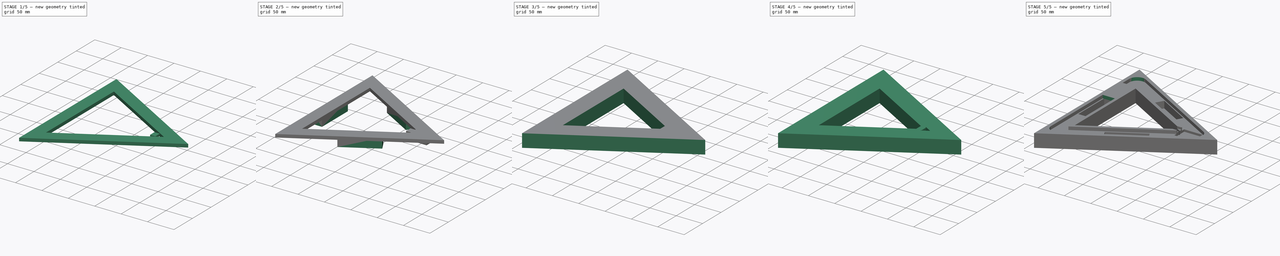
[diagram: build sequence overview — one tinted view per stage of 5, left to right]
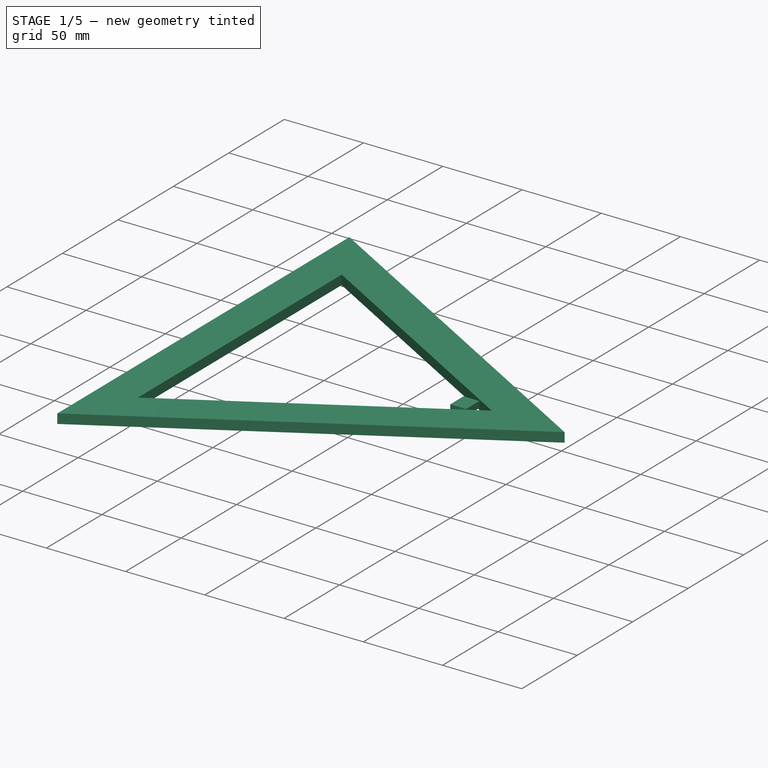
[diagram: stage 1 of 5 — iso view after this stage's code; geometry added in this stage tinted green]
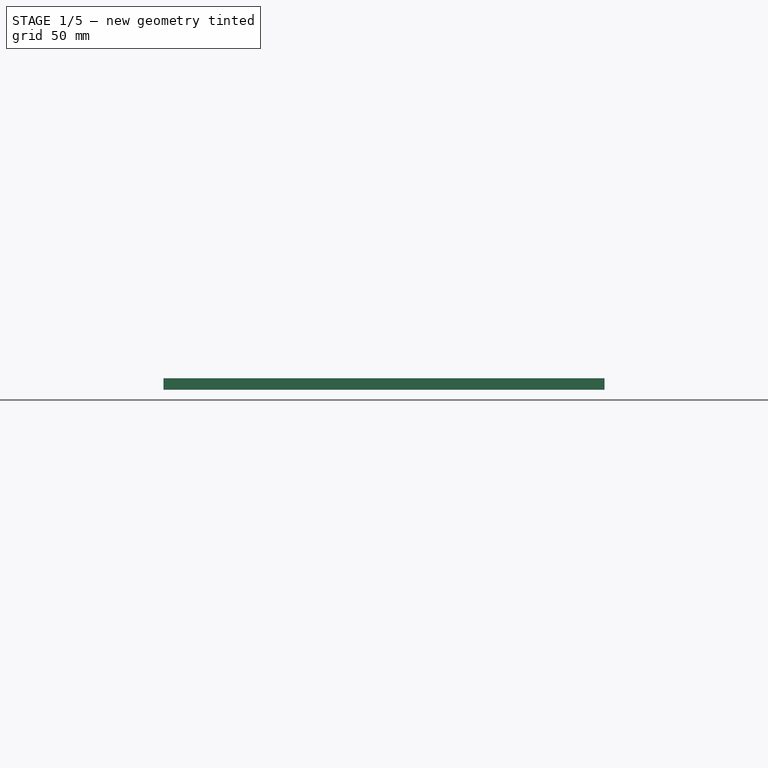
[diagram: stage 1 of 5 — front view after this stage's code; geometry added in this stage tinted green]
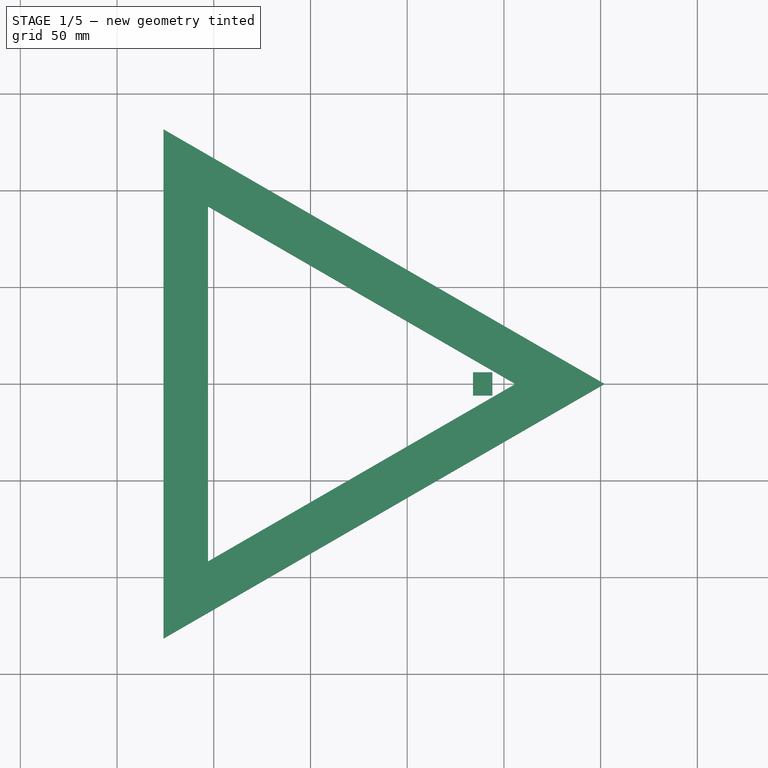
[diagram: stage 1 of 5 — top view after this stage's code; geometry added in this stage tinted green]
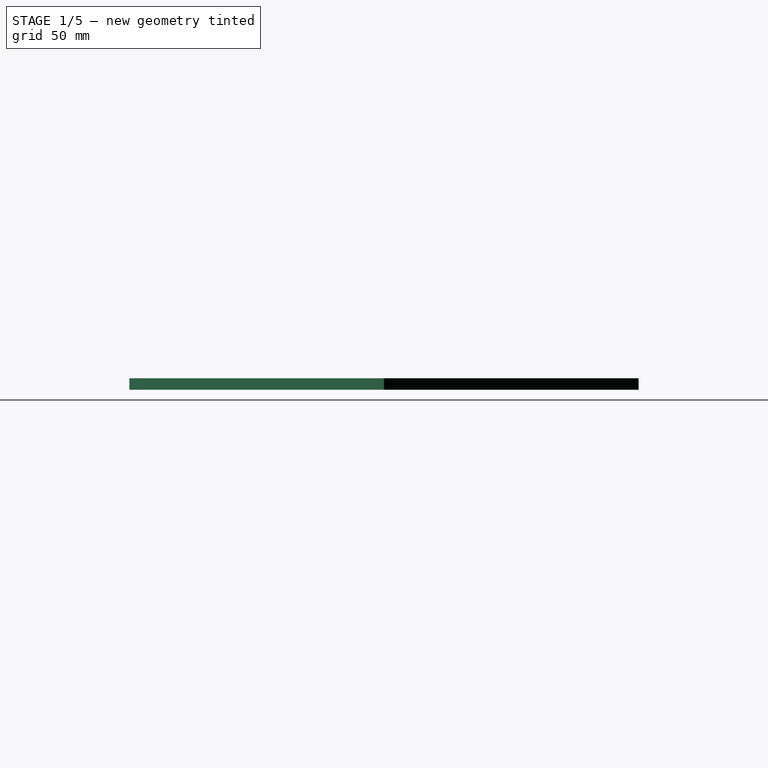
[diagram: stage 1 of 5 — right view after this stage's code; geometry added in this stage tinted green]
FCSTD DOCUMENT  (FreeCAD 0.17R13541 (Git))
Label: TechNicolor-Triangle-39-battery-D1-Mini-USB-BMS-Big-Filleted-Channel-And-USB-alt-Solid-Back-through-filleted-inner-corners
License: All rights reserved
LicenseURL: http://en.wikipedia.org/wiki/All_rights_reserved
objects: Part::Cut×8, Part::Box×6, Part::Prism×4, Sketcher::SketchObject×1, App::MeasureDistance×1, Part::Fillet×1
note: 20 computed .brp shape members not serialized (recipe doc carries the construction recipe); baked Part::Feature solids carry a one-line shape summary decoded from their .brp

FEATURE [Part::Box] Box004
  AttacherType = Attacher::AttachEngine3D
  Height = 4
  Length = 10
  Placement = pos=(84,-6,15) rot=(0,0,1;0rad)
  Width = 12
FEATURE [Part::Prism] Prism002
  AttacherType = Attacher::AttachEngine3D
  Circumradius = 152
  Height = 6
  Placement = pos=(0,0,13) rot=(0,0,1;0rad)
  Polygon = 3
FEATURE [Part::Prism] Prism003
  AttacherType = Attacher::AttachEngine3D
  Circumradius = 106
  Height = 6
  Placement = pos=(0,0,13) rot=(0,0,1;0rad)
  Polygon = 3
FEATURE [Part::Cut] Cut006
  Base = -> Prism002
  Tool = -> Prism003
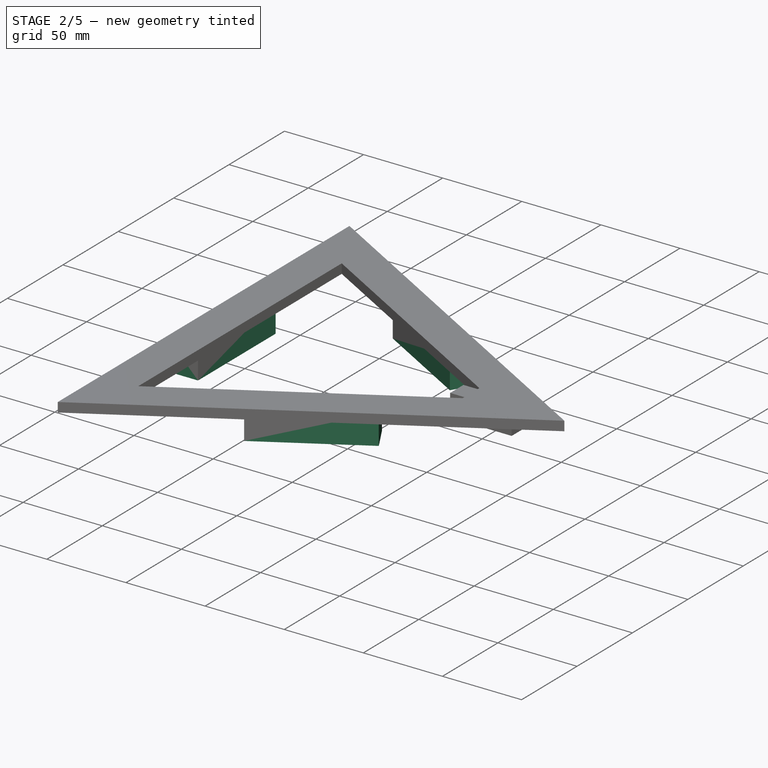
[diagram: stage 2 of 5 — iso view after this stage's code; geometry added in this stage tinted green]
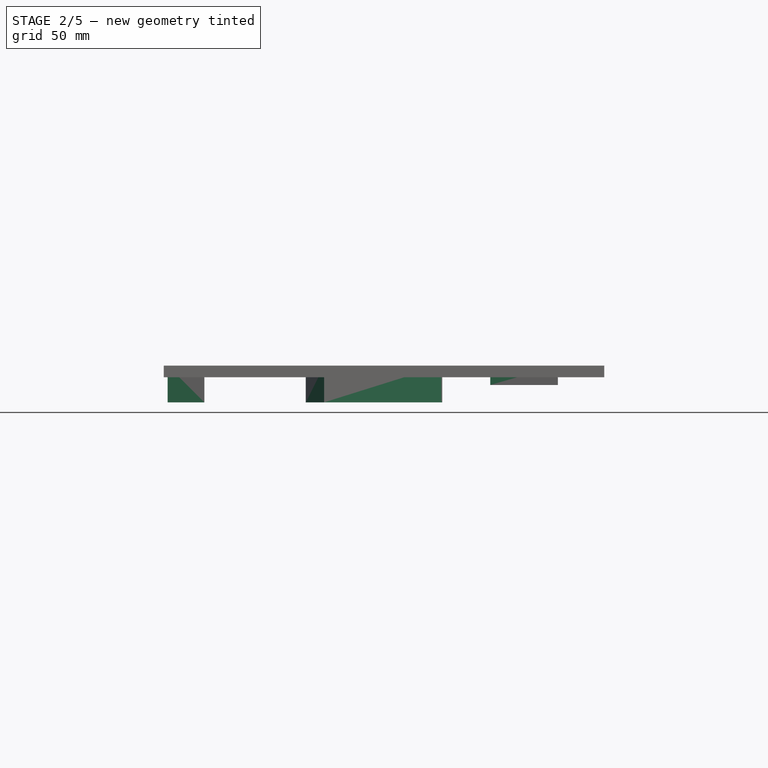
[diagram: stage 2 of 5 — front view after this stage's code; geometry added in this stage tinted green]
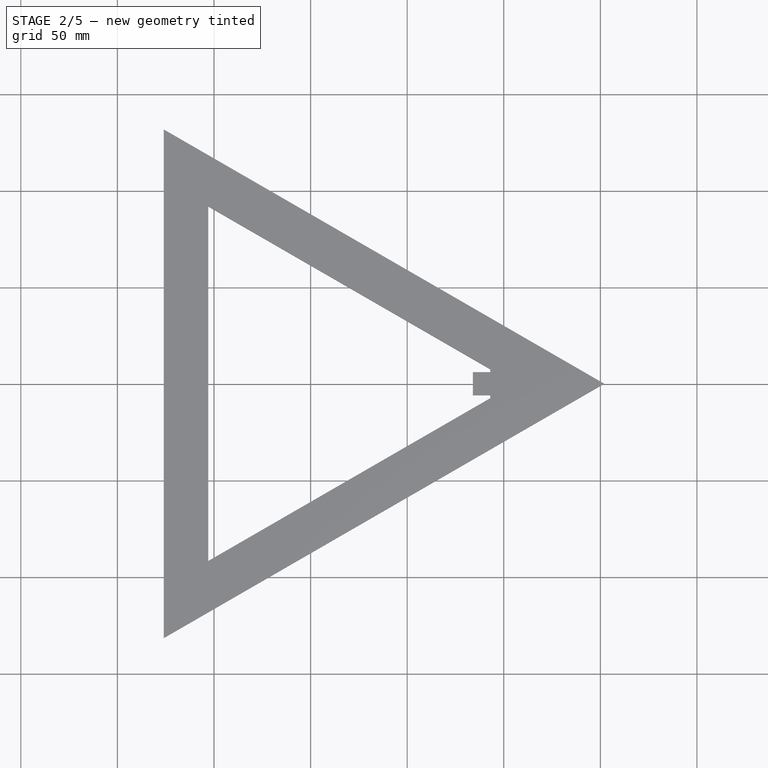
[diagram: stage 2 of 5 — top view after this stage's code; geometry added in this stage tinted green]
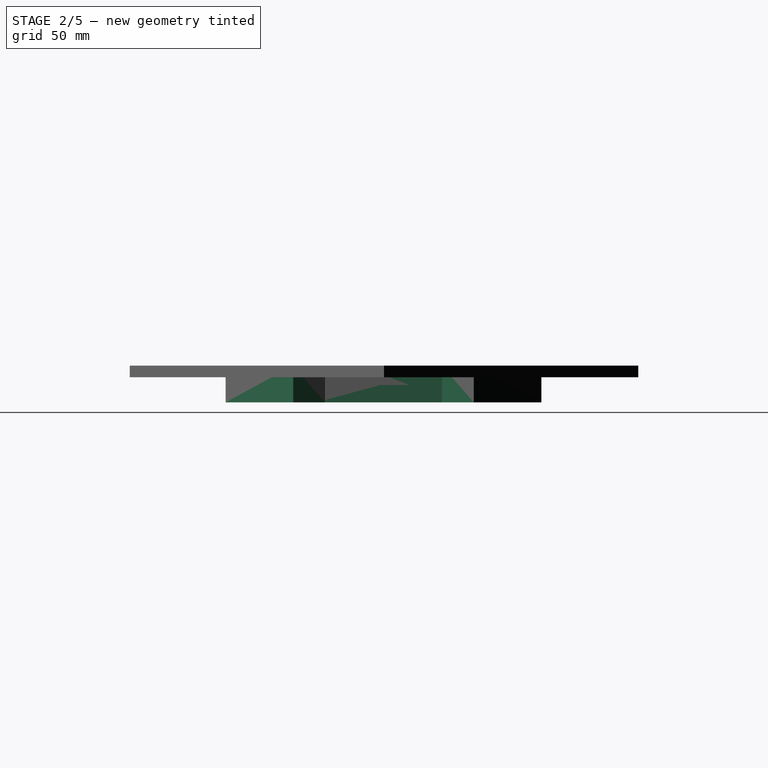
[diagram: stage 2 of 5 — right view after this stage's code; geometry added in this stage tinted green]
FEATURE [Part::Box] Box
  AttacherType = Attacher::AttachEngine3D
  Height = 19
  Length = 70
  Placement = pos=(-2,65,0) rot=(0,0,-1;0.523599rad)
  Width = 19
FEATURE [Part::Box] Box001
  AttacherType = Attacher::AttachEngine3D
  Height = 19
  Length = 70
  Placement = pos=(-55,-35,0) rot=(0,0,1;1.5708rad)
  Width = 19
FEATURE [Part::Box] Box002
  AttacherType = Attacher::AttachEngine3D
  Height = 19
  Length = 70
  Placement = pos=(7,-82,0) rot=(0,0,1;0.523599rad)
  Width = 19
FEATURE [Part::Box] Box003
  AttacherType = Attacher::AttachEngine3D
  Height = 10
  Length = 35
  Placement = pos=(93,-13.3,9) rot=(0,0,1;0rad)
  Width = 26.5
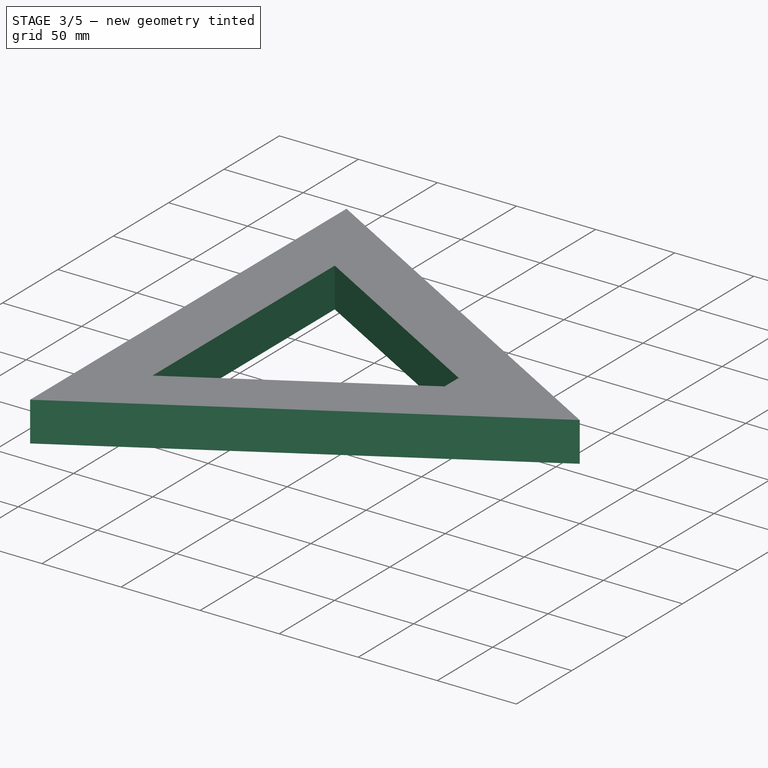
[diagram: stage 3 of 5 — iso view after this stage's code; geometry added in this stage tinted green]
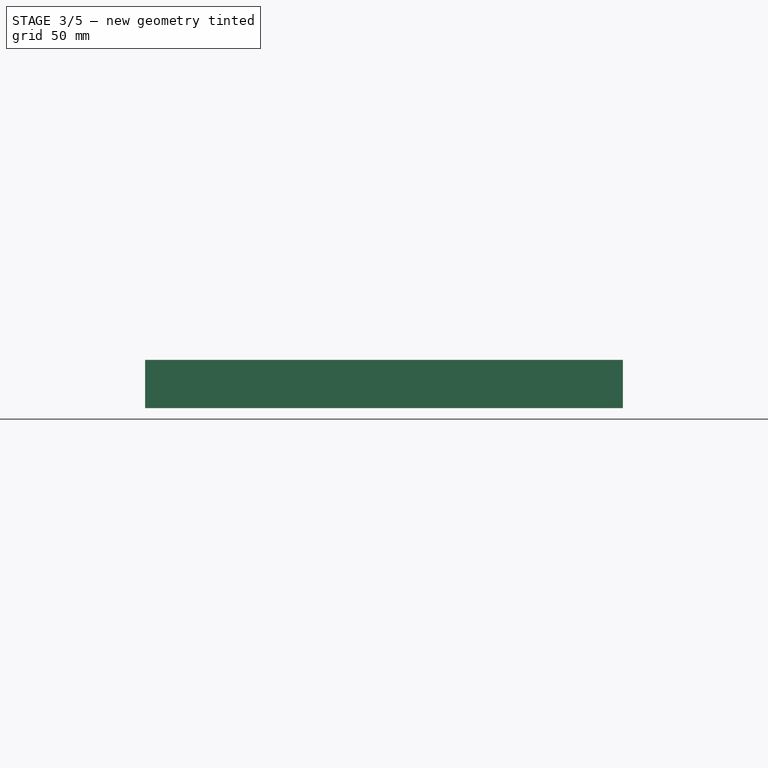
[diagram: stage 3 of 5 — front view after this stage's code; geometry added in this stage tinted green]
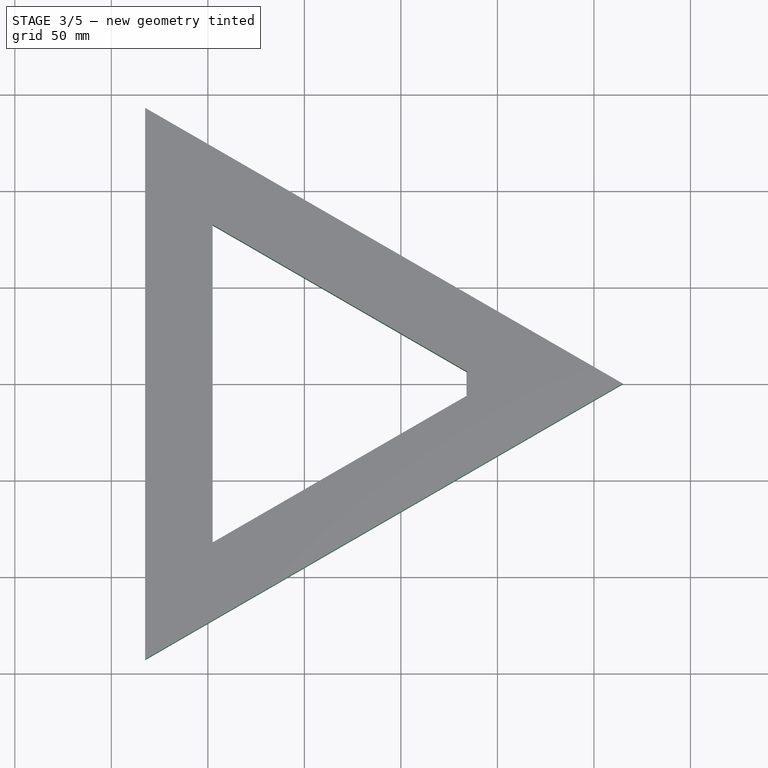
[diagram: stage 3 of 5 — top view after this stage's code; geometry added in this stage tinted green]
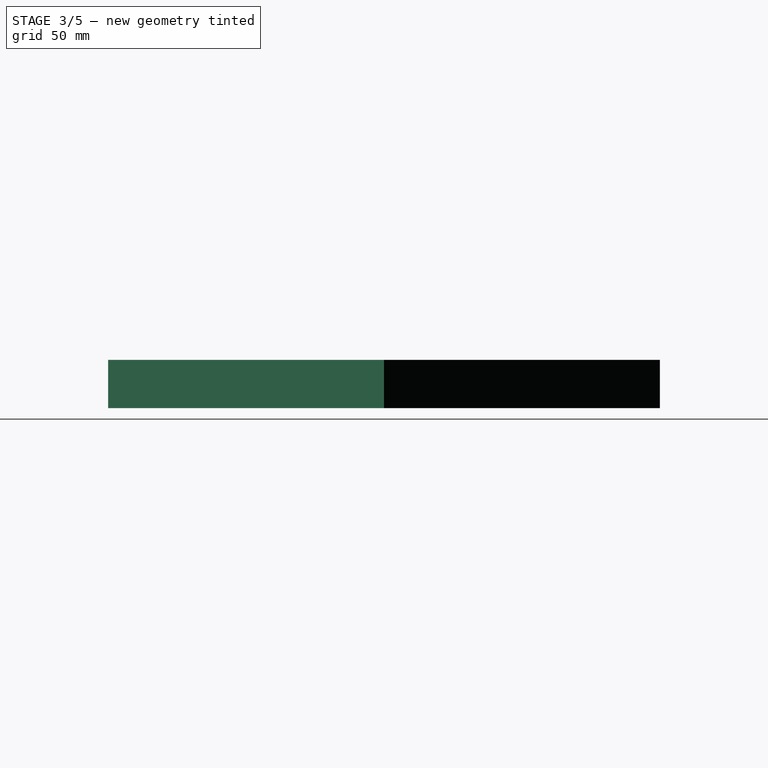
[diagram: stage 3 of 5 — right view after this stage's code; geometry added in this stage tinted green]
FEATURE [Part::Prism] Prism
  AttacherType = Attacher::AttachEngine3D
  Circumradius = 165
  Height = 25
  Placement = pos=(0,0,-6) rot=(0,0,1;0rad)
  Polygon = 3
FEATURE [Part::Prism] Prism001
  AttacherType = Attacher::AttachEngine3D
  Circumradius = 95
  Height = 25
  Placement = pos=(0,0,-6) rot=(0,0,1;0rad)
  Polygon = 3
FEATURE [Part::Cut] Cut
  Base = -> Prism
  Tool = -> Prism001
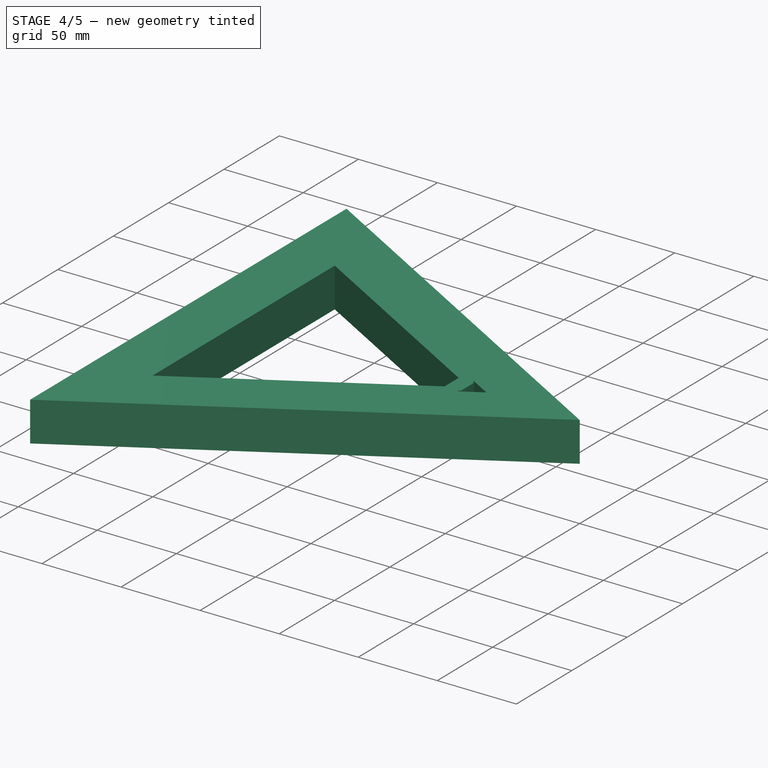
[diagram: stage 4 of 5 — iso view after this stage's code; geometry added in this stage tinted green]
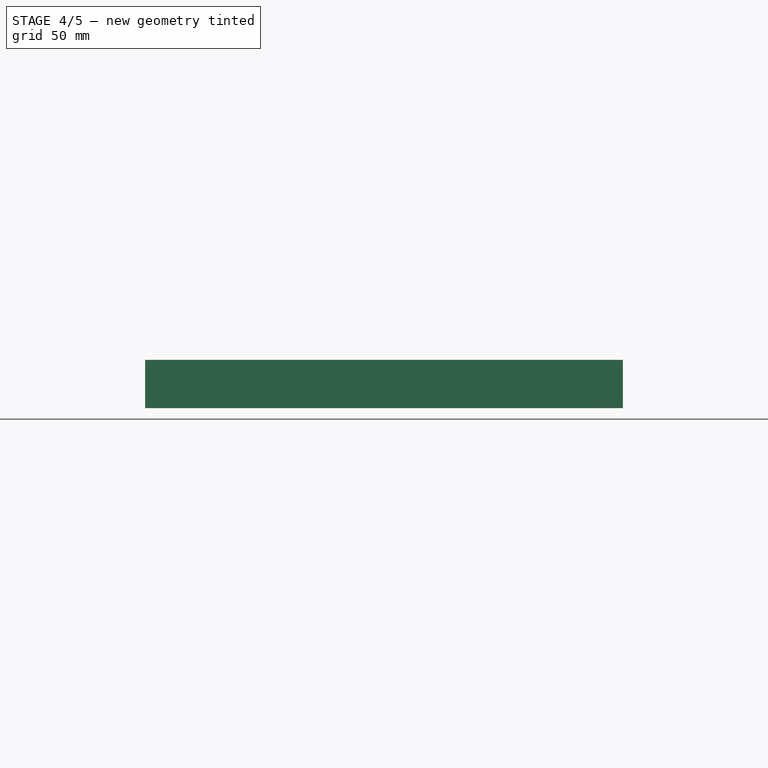
[diagram: stage 4 of 5 — front view after this stage's code; geometry added in this stage tinted green]
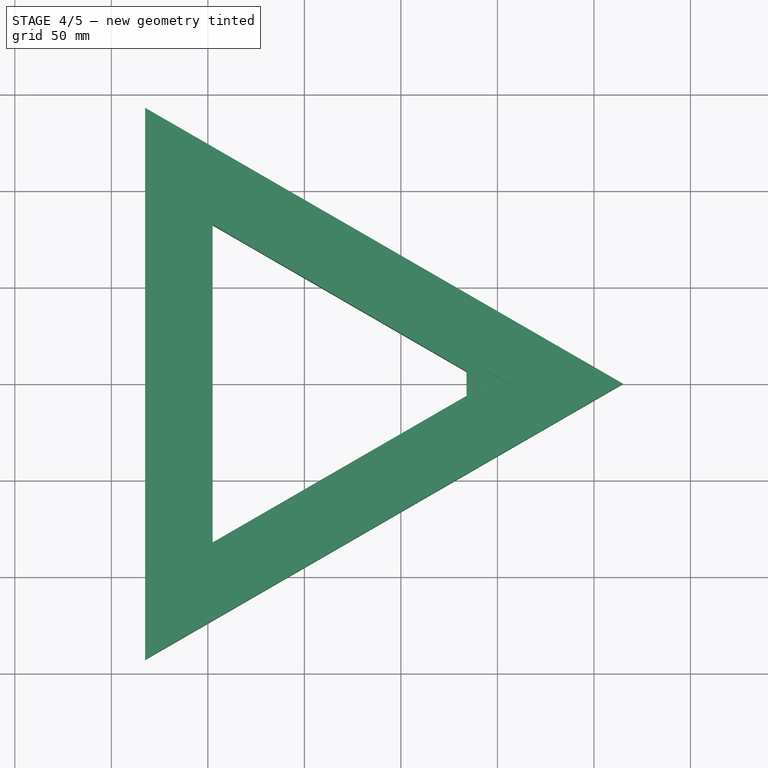
[diagram: stage 4 of 5 — top view after this stage's code; geometry added in this stage tinted green]
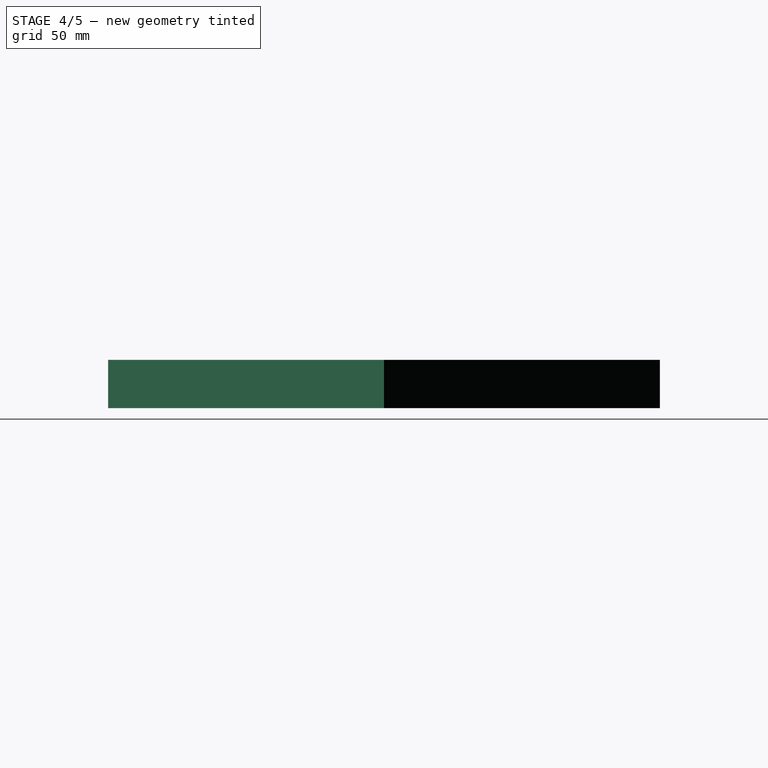
[diagram: stage 4 of 5 — right view after this stage's code; geometry added in this stage tinted green]
FEATURE [Part::Cut] Cut001
  Base = -> Cut
  Tool = -> Box
FEATURE [Part::Cut] Cut002
  Base = -> Cut001
  Tool = -> Box001
FEATURE [Part::Cut] Cut003
  Base = -> Cut002
  Tool = -> Box002
FEATURE [Part::Cut] Cut004
  Base = -> Cut003
  Tool = -> Box003
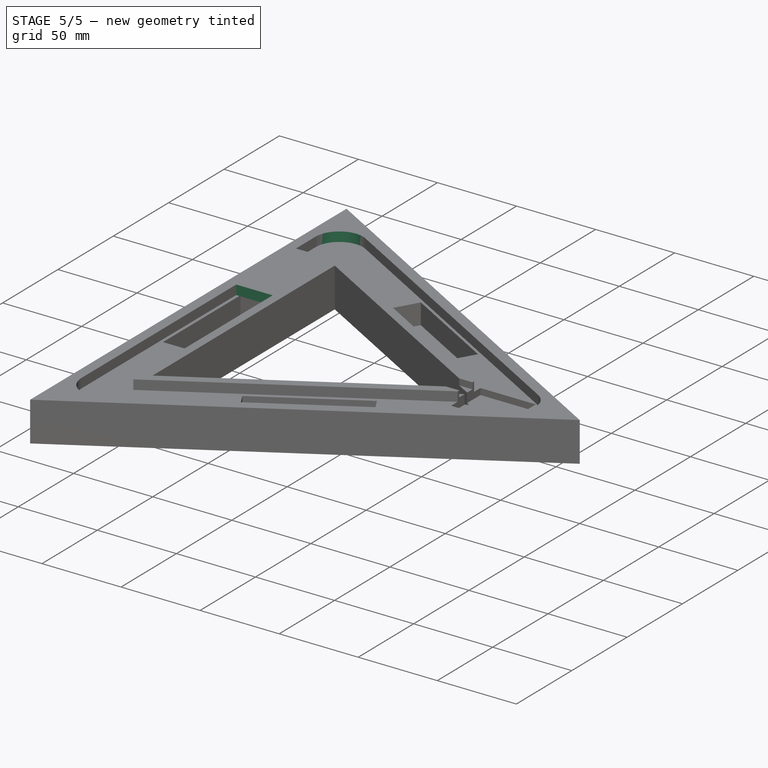
[diagram: stage 5 of 5 — iso view after this stage's code; geometry added in this stage tinted green]
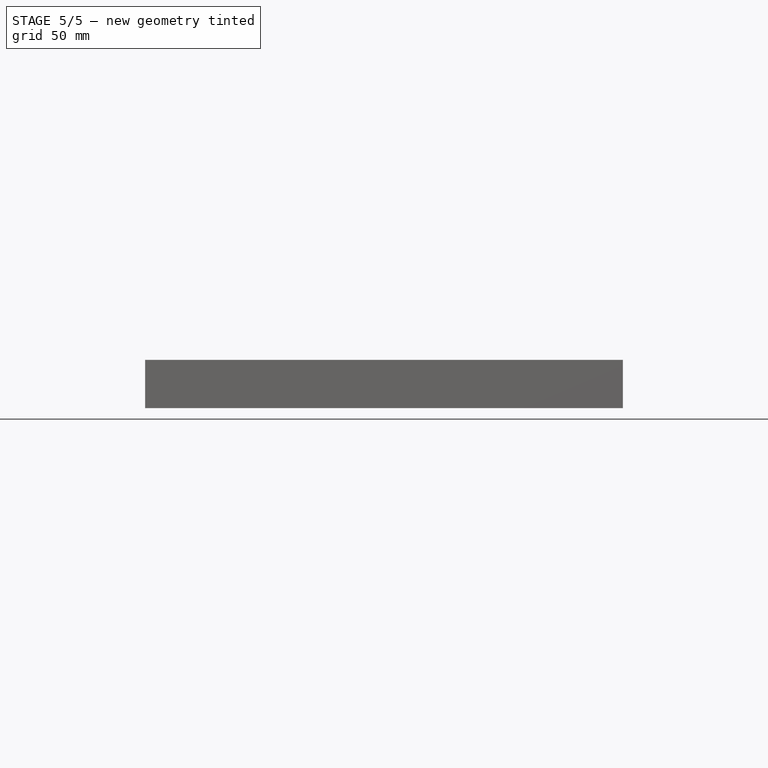
[diagram: stage 5 of 5 — front view after this stage's code; geometry added in this stage tinted green]
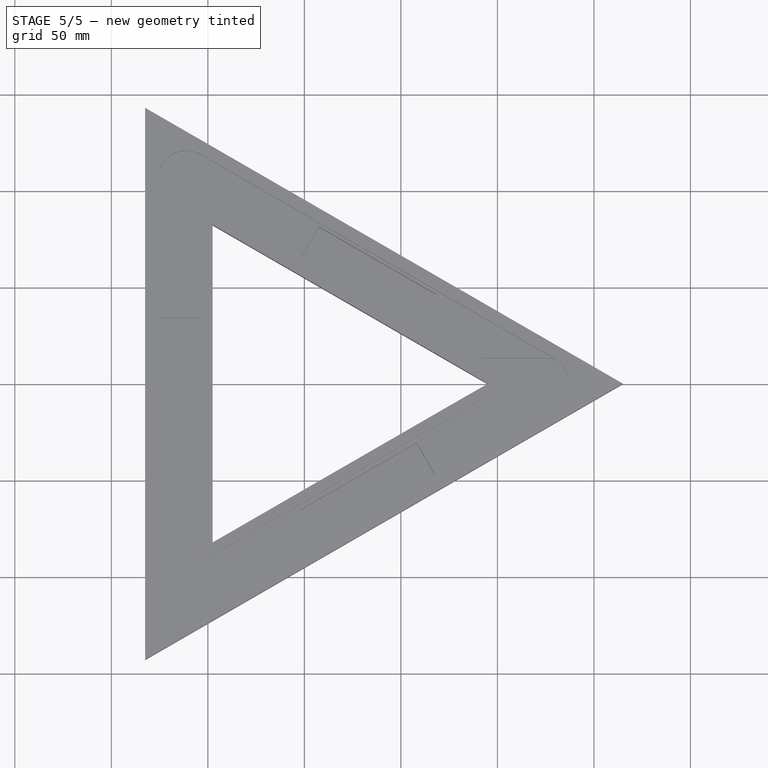
[diagram: stage 5 of 5 — top view after this stage's code; geometry added in this stage tinted green]
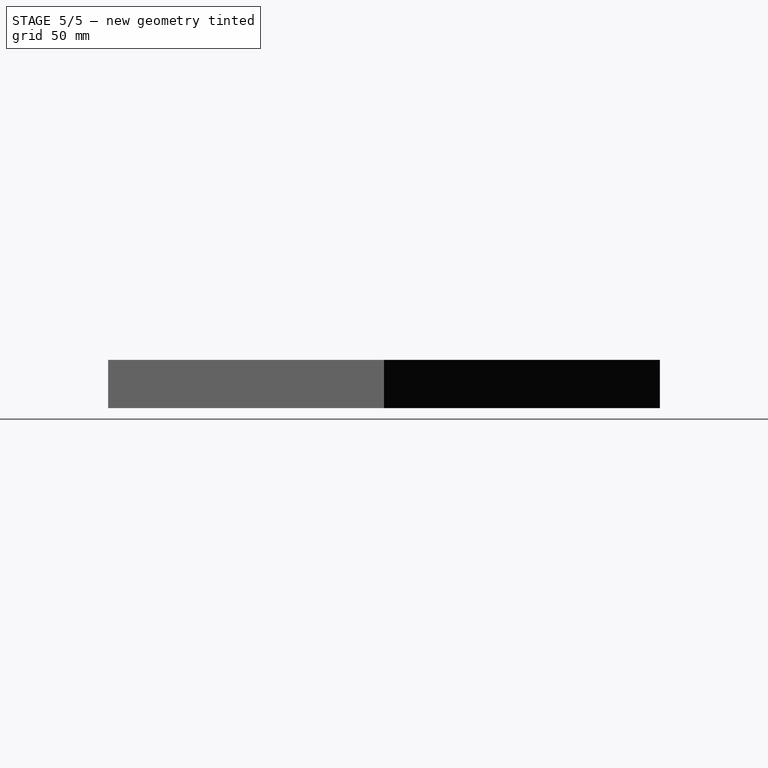
[diagram: stage 5 of 5 — right view after this stage's code; geometry added in this stage tinted green]
FEATURE [Part::Cut] Cut005
  Base = -> Cut004
  Tool = -> Box004
FEATURE [Part::Box] Box005
  AttacherType = Attacher::AttachEngine3D
  Height = 6
  Length = 23
  Placement = pos=(-76,34,13) rot=(0,0,1;0rad)
  Width = 54
FEATURE [Part::Cut] Cut007
  Base = -> Cut005
  Tool = -> Cut006
FEATURE [Sketcher::SketchObject] Sketch
  MapMode = 5
  Placement = pos=(0,0,19) rot=(0,0,1;0rad)
  Support = -> [Cut]
  sketch-geometry (8):
    g0: LineSegment StartX=-74.7277 StartY=38.2242 StartZ=0 EndX=-55.7277 EndY=38.2242 EndZ=0
    g1: LineSegment StartX=-55.7277 StartY=38.2242 StartZ=0 EndX=-55.7277 EndY=-36.7758 EndZ=0
    g2: LineSegment StartX=-55.7277 StartY=-36.7758 StartZ=0 EndX=-74.7277 EndY=-36.7758 EndZ=0
    g3: LineSegment StartX=-74.7277 StartY=-36.7758 StartZ=0 EndX=-74.7277 EndY=38.2242 EndZ=0
    g4: LineSegment StartX=78.5324 StartY=-15.442 StartZ=0 EndX=3.53238 EndY=-58.1438 EndZ=0
    g5: LineSegment StartX=3.53238 StartY=-58.1438 StartZ=0 EndX=14.3502 EndY=-77.1438 EndZ=0
    g6: LineSegment StartX=14.3502 StartY=-77.1438 StartZ=0 EndX=89.3502 EndY=-34.442 EndZ=0
    g7: LineSegment StartX=89.3502 StartY=-34.442 StartZ=0 EndX=78.5324 EndY=-15.442 EndZ=0
  constraints (22):
    c: Coincident(g0,g1)
    c: Coincident(g1,g2)
    c: Coincident(g2,g3)
    c: Coincident(g3,g0)
    c: Horizontal(g0)
    c: Vertical(g1)
    c: Parallel(g1,g3)
    c: Parallel(g0,g2)
    c: Equal(g0,g2)
    c: Equal(g1,g3)
    c: DistanceY(g3) = 75
    c: DistanceX(g2) = -19
    c: Coincident(g4,g5)
    c: Coincident(g5,g6)
    c: Coincident(g6,g7)
    c: Coincident(g7,g4)
    c: DistanceX(g4) = -75
    c: DistanceX(g6) = 75
    c: DistanceY(g7) = 19
    c: DistanceY(g5) = -19
    c: Angle(g4,g7) = 1.5708
    c: Angle(g6,g5) = 1.5708
FEATURE [App::MeasureDistance] Distance  label="Distance: 13.23 mm"
  Distance = 13.2328
  P1 = (83.3779,6.71002,19)
  P2 = (83.7095,-6.51859,19)
FEATURE [Part::Fillet] Fillet
  Base = -> Cut007
  Edges = 3 edges r=15: [Edge30,Edge31,Edge33]
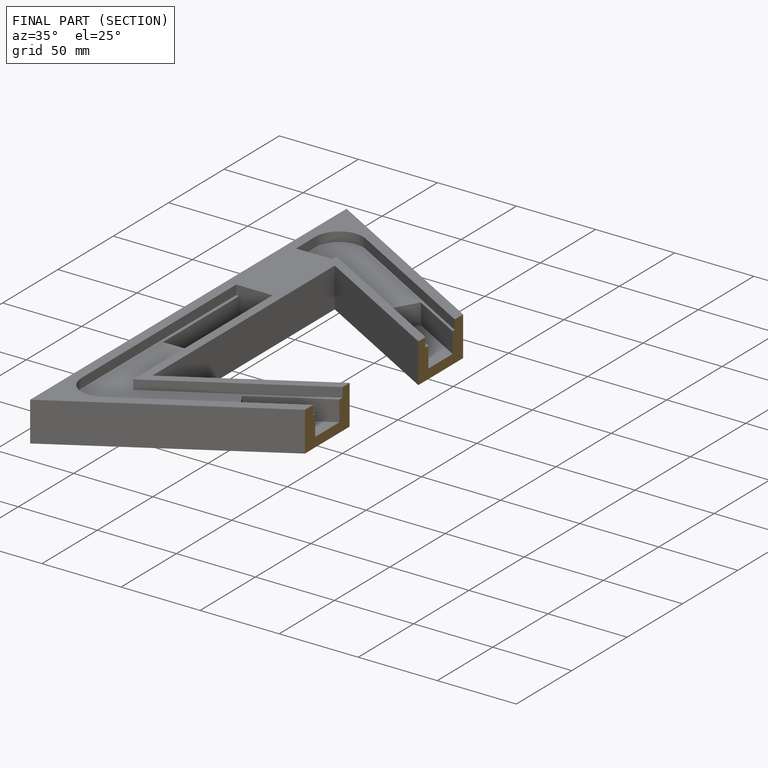
[diagram: finished part — half-section view (interior)]
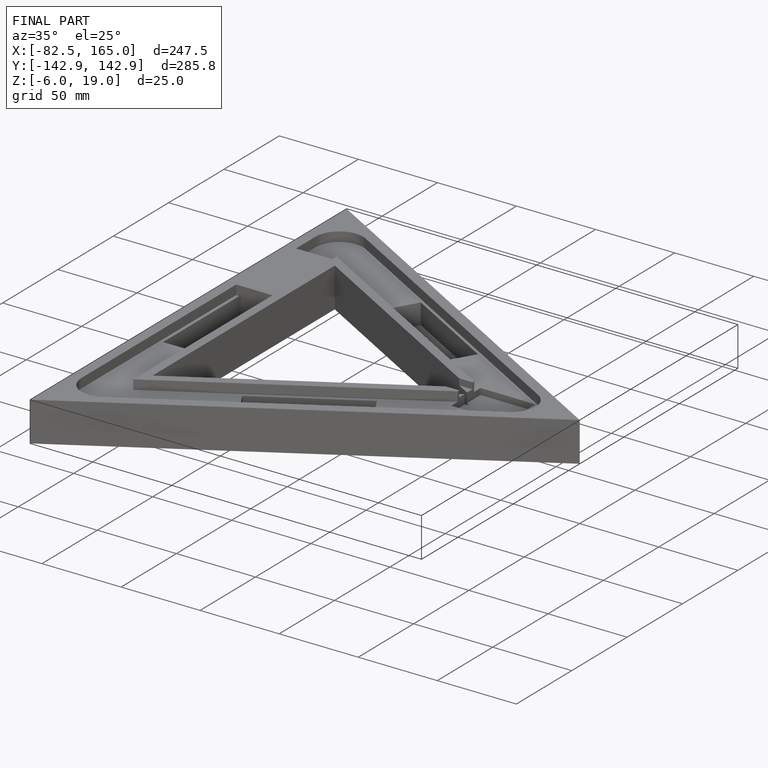
[diagram: finished part — iso view with bounding-box wireframe]
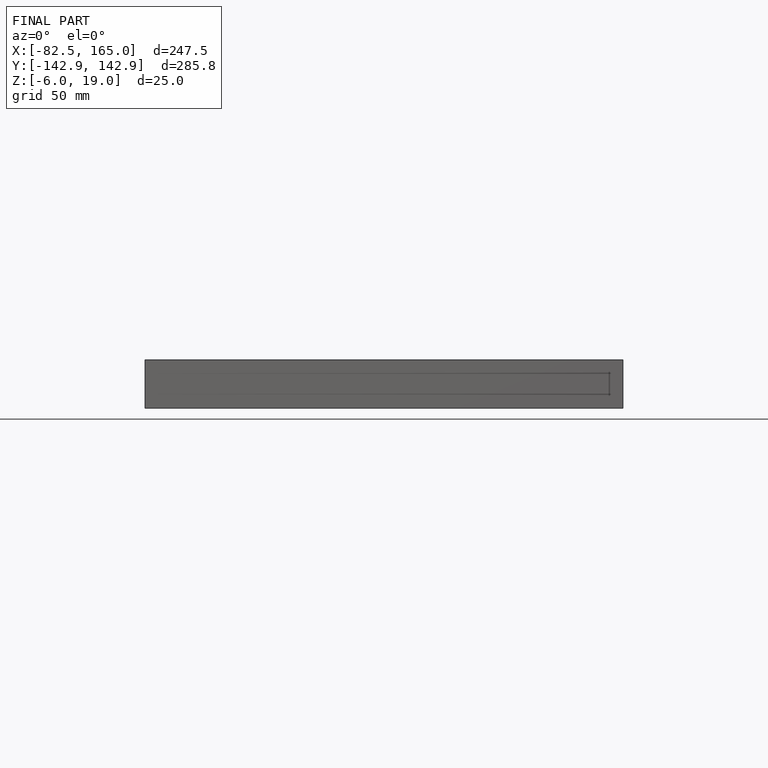
[diagram: finished part — front view with bounding-box wireframe]
